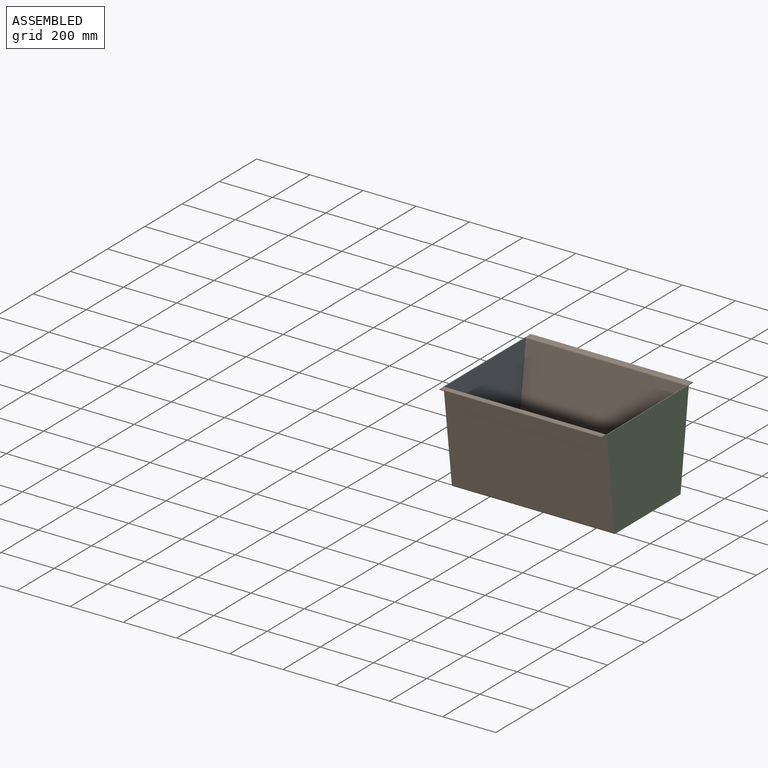
[diagram: assembled view]
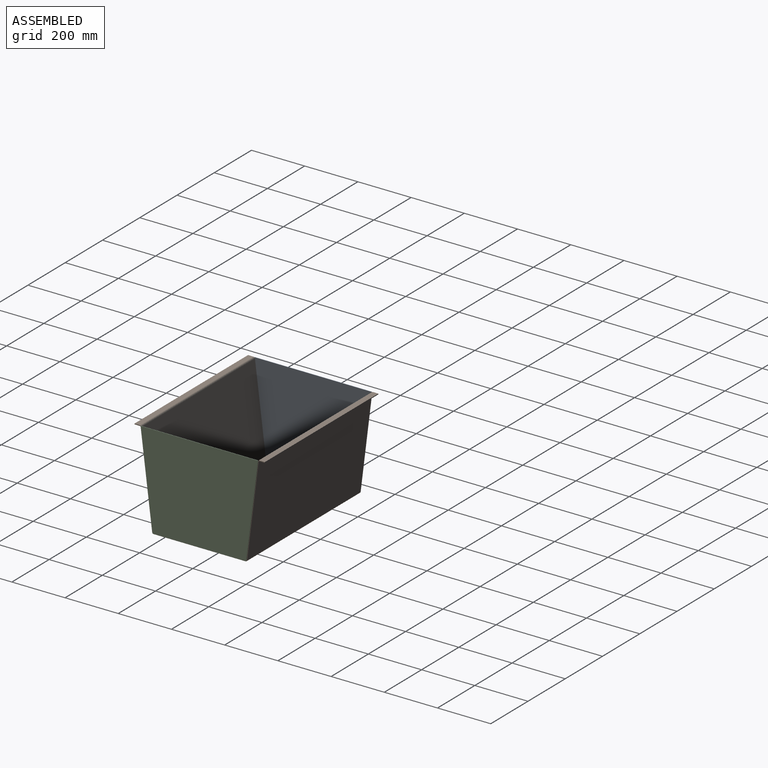
[diagram: assembled view, second angle]
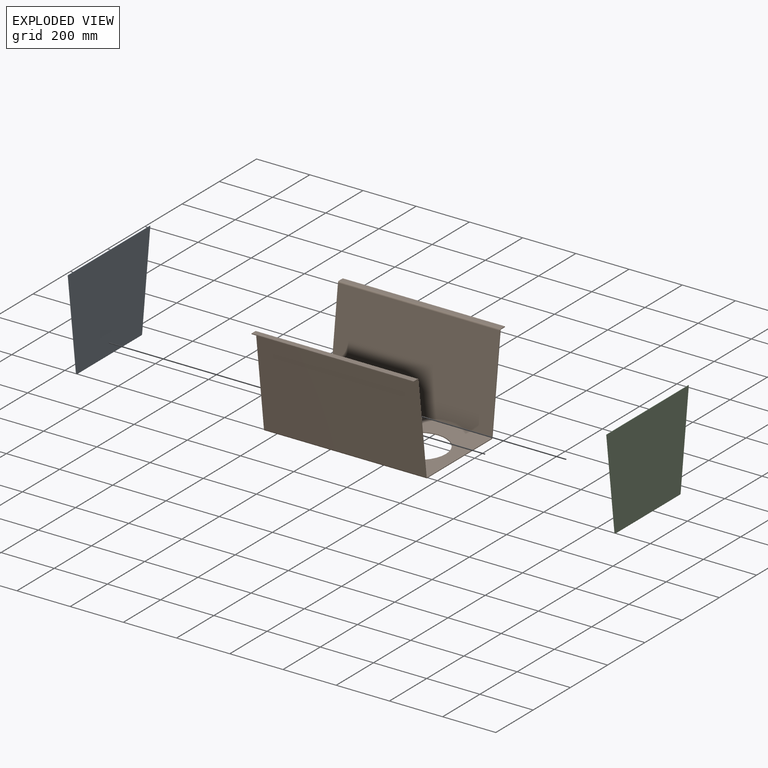
[diagram: exploded view]
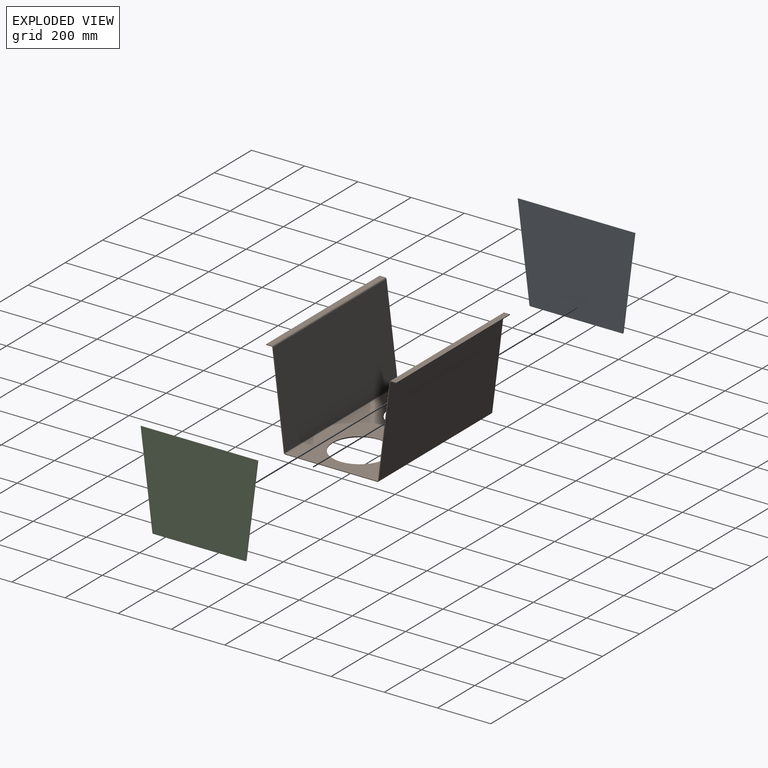
[diagram: exploded view, second angle]
ASSEMBLY  parts=3 mates=2
PART A: 8 faces, bbox 441.3x1.6x354 mm
  f0: plane 351.23x44.1mm, normal (-0.99,0,-0.12), area 562mm2, adj f3,f4,f5,f6
  f1: plane 346.82x1.59mm, normal (0,0,-1), area 550.6mm2, adj f4,f5,f6,f7
  f2: plane 351.23x44.1mm, normal (0.99,0,-0.12), area 562mm2, adj f3,f4,f5,f7
  f3: plane 441.33x1.59mm, normal (0,0,1), area 700.6mm2, adj f0,f2,f4,f5
  f4: plane 441.33x354.01mm, normal (0,-1,0), area 140495.5mm2, adj f0,f1,f2,f3,f6,f7
  f5: plane 441.33x354.01mm, normal (0,1,0), area 140495.5mm2, adj f0,f1,f2,f3,f6,f7
  f6: cylinder r=3.17mm len=3.15mm, axis (0,1,0), area 7.3mm2, adj f0,f1,f4,f5
  f7: cylinder r=3.17mm len=3.15mm, axis (0,1,0), area 7.3mm2, adj f1,f2,f4,f5
PART B: 40 faces, bbox 609.6x489.8x356.3 mm
  f0: plane 345.28x2.67mm, normal (1,0,0), area 920.9mm2, adj f4,f5,f19,f37
  f1: cylinder r=101.6mm len=203.2mm, axis (0,0,-1), area 1702.5mm2, adj f4,f5
  f2: cylinder r=101.6mm len=203.2mm, axis (0,0,-1), area 1702.5mm2, adj f4,f5
  f3: plane 345.28x2.67mm, normal (-1,0,0), area 920.9mm2, adj f4,f5,f20,f36
  f4: plane 609.6x345.28mm, normal (0,0,-1), area 145624.8mm2, adj f0,f1,f2,f3,f21,f38
  f5: plane 609.6x345.28mm, normal (0,0,1), area 145624.8mm2, adj f0,f1,f2,f3,f22,f39
  f6: plane 346.1x45.72mm, normal (1,0,0), area 929.3mm2, adj f8,f9,f16,f19
  f7: plane 346.1x45.72mm, normal (-1,0,0), area 929.3mm2, adj f8,f9,f15,f20
  f8: plane 609.6x345.78mm, normal (0,0.99,-0.12), area 212413.3mm2, adj f6,f7,f18,f21
  f9: plane 609.6x345.78mm, normal (0,-0.99,0.12), area 212413.3mm2, adj f6,f7,f17,f22
  f10: plane 609.6x2.67mm, normal (0,1,0), area 1625.8mm2, adj f11,f12,f13,f14
  f11: plane 20.24x2.7mm, normal (1,0,0), area 54mm2, adj f10,f13,f14,f16
  f12: plane 20.24x2.7mm, normal (-1,0,0), area 54mm2, adj f10,f13,f14,f15
  f13: plane 609.6x20.23mm, normal (0,0,-1), area 12333.1mm2, adj f10,f11,f12,f18
  f14: plane 609.6x20.23mm, normal (0,0,1), area 12333.1mm2, adj f10,f11,f12,f17
  f15: plane 5.81x5.45mm, normal (-1,0,0), area 17.4mm2, adj f7,f12,f17,f18
  f16: plane 5.81x5.45mm, normal (1,0,0), area 17.4mm2, adj f6,f11,f17,f18
  f17: cylinder r=5.84mm len=609.6mm, axis (-1,0,0), area 5159mm2, adj f9,f14,f15,f16
  f18: cylinder r=3.17mm len=609.6mm, axis (-1,0,0), area 2803.8mm2, adj f8,f13,f15,f16
  f19: plane 5.8x5.45mm, normal (1,0,0), area 17.4mm2, adj f0,f6,f21,f22
  f20: plane 5.8x5.45mm, normal (-1,0,0), area 17.4mm2, adj f3,f7,f21,f22
  f21: cylinder r=5.84mm len=609.6mm, axis (1,0,0), area 5152.7mm2, adj f4,f8,f19,f20
  f22: cylinder r=3.17mm len=609.6mm, axis (1,0,0), area 2800.4mm2, adj f5,f9,f19,f20
  f23: plane 346.1x45.72mm, normal (-1,0,0), area 929.3mm2, adj f25,f26,f33,f36
  f24: plane 346.1x45.72mm, normal (1,0,0), area 929.3mm2, adj f25,f26,f32,f37
  f25: plane 609.6x345.78mm, normal (0,-0.99,-0.12), area 212413.3mm2, adj f23,f24,f35,f38
  f26: plane 609.6x345.78mm, normal (0,0.99,0.12), area 212413.3mm2, adj f23,f24,f34,f39
  f27: plane 609.6x2.67mm, normal (0,-1,0), area 1625.8mm2, adj f28,f29,f30,f31
  f28: plane 20.24x2.7mm, normal (-1,0,0), area 54mm2, adj f27,f30,f31,f33
  f29: plane 20.24x2.7mm, normal (1,0,0), area 54mm2, adj f27,f30,f31,f32
  f30: plane 609.6x20.23mm, normal (0,0,-1), area 12333.1mm2, adj f27,f28,f29,f35
  f31: plane 609.6x20.23mm, normal (0,0,1), area 12333.1mm2, adj f27,f28,f29,f34
  f32: plane 5.81x5.45mm, normal (1,0,0), area 17.4mm2, adj f24,f29,f34,f35
  f33: plane 5.81x5.45mm, normal (-1,0,0), area 17.4mm2, adj f23,f28,f34,f35
  f34: cylinder r=5.84mm len=609.6mm, axis (1,0,0), area 5159mm2, adj f26,f31,f32,f33
  f35: cylinder r=3.17mm len=609.6mm, axis (1,0,0), area 2803.8mm2, adj f25,f30,f32,f33
  f36: plane 5.8x5.45mm, normal (-1,0,0), area 17.4mm2, adj f3,f23,f38,f39
  f37: plane 5.8x5.45mm, normal (1,0,0), area 17.4mm2, adj f0,f24,f38,f39
  f38: cylinder r=5.84mm len=609.6mm, axis (-1,0,0), area 5152.7mm2, adj f4,f25,f36,f37
  f39: cylinder r=3.17mm len=609.6mm, axis (-1,0,0), area 2800.4mm2, adj f5,f26,f36,f37
PART C: same geometry as A
PLACE A rot(axis=(0,0,1),90deg) t=(-524.57,-53.55,-69.27)mm
PLACE B t=(-218.18,124.25,-67.93)mm
PLACE C rot(axis=(0,0,-1),90deg) t=(88.2,-53.55,-69.27)mm
MATE fastened A.f4 <-> B.f3  axis (1,0,0) through (-522.98,-53.55,-69.27)mm
MATE fastened C.f4 <-> B.f0  axis (-1,0,0) through (86.62,-53.55,-69.27)mm
